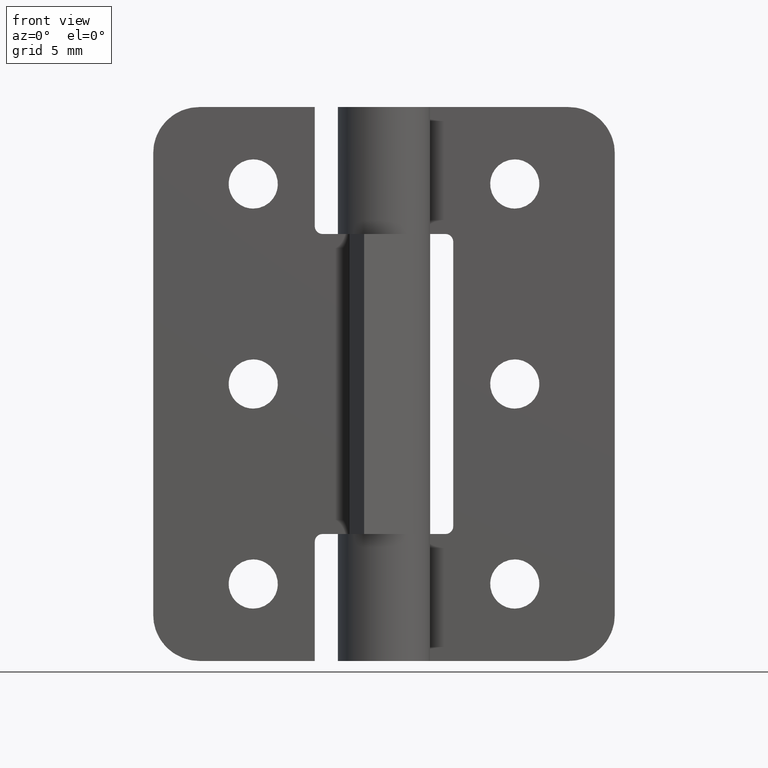
[diagram: clean part render]
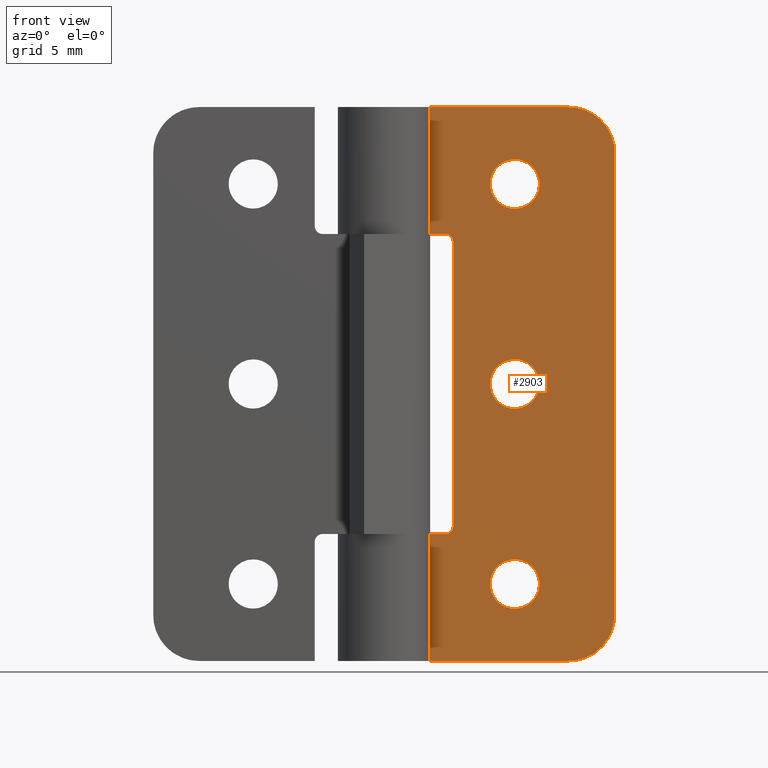
[diagram: same view with one face highlighted and labeled with its STEP entity id]
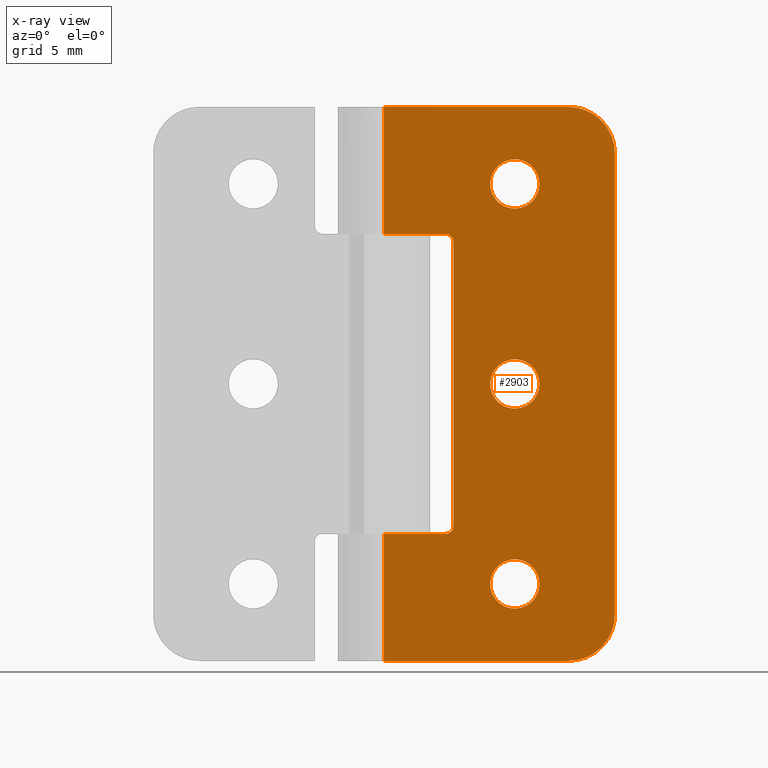
[diagram: x-ray of the same camera — body ghosted, the highlighted face saturated]
A machine part, front view. The second image highlights one B-rep face of the part: STEP entity #2903.
The next image is the same camera in x-ray: the body ghosted, the highlighted face saturated — about 0% of this face is hidden behind the body in this view.
In plain terms, the highlighted face is a freeform B-spline surface patch.
Its self-contained STEP definition (entity closure, byte-faithful):
#1598=CARTESIAN_POINT('',(8.499999999999901,1.499999999999946,32.599992999999998));
#1599=VERTEX_POINT('',#1598);
#1600=CARTESIAN_POINT('',(6.904932266033066,1.499999999999946,31.125527553242971));
#1601=VERTEX_POINT('',#1600);
#1602=CARTESIAN_POINT('',(8.499999999999901,1.499999999999946,32.599992999999998));
#1603=CARTESIAN_POINT('',(7.020975213492634,1.499999999999947,32.599993000000005));
#1604=CARTESIAN_POINT('',(6.904932266033066,1.499999999999946,31.125527553242968));
#1612=(BOUNDED_CURVE()B_SPLINE_CURVE(2,(#1602,#1603,#1604),.UNSPECIFIED.,.F.,.U.)B_SPLINE_CURVE_WITH_KNOTS((3,3),(0.0,0.236331300615913),.UNSPECIFIED.)CURVE()GEOMETRIC_REPRESENTATION_ITEM()RATIONAL_B_SPLINE_CURVE((1.0,0.723120658624943,0.969723356136642))REPRESENTATION_ITEM(''));
#1613=EDGE_CURVE('',#1599,#1601,#1612,.T.);
#1654=CARTESIAN_POINT('',(10.095067733966729,1.499999999999946,30.874458446757028));
#1655=VERTEX_POINT('',#1654);
#1661=CARTESIAN_POINT('',(10.095067733966733,1.499999999999946,30.874458446757032));
#1662=CARTESIAN_POINT('',(10.099999999999900,1.499999999999945,30.937128828708946));
#1663=CARTESIAN_POINT('',(10.099999999999900,1.499999999999946,30.999993000000000));
#1664=CARTESIAN_POINT('',(10.099999999999900,1.499999999999946,32.599992999999998));
#1665=CARTESIAN_POINT('',(8.499999999999901,1.499999999999946,32.599992999999998));
#1673=(BOUNDED_CURVE()B_SPLINE_CURVE(2,(#1661,#1662,#1663,#1664,#1665),.UNSPECIFIED.,.F.,.U.)B_SPLINE_CURVE_WITH_KNOTS((3,2,3),(0.736331300615913,0.750000000000000,1.0),.UNSPECIFIED.)CURVE()GEOMETRIC_REPRESENTATION_ITEM()RATIONAL_B_SPLINE_CURVE((0.969723356136643,0.983986122561605,1.0,0.707106781186548,1.0))REPRESENTATION_ITEM(''));
#1674=EDGE_CURVE('',#1655,#1599,#1673,.T.);
#1697=CARTESIAN_POINT('',(8.499999999999901,1.499999999999946,29.399992999999998));
#1698=VERTEX_POINT('',#1697);
#1699=CARTESIAN_POINT('',(6.904932266033066,1.499999999999946,31.125527553242975));
#1700=CARTESIAN_POINT('',(6.899999999999901,1.499999999999946,31.062857171291050));
#1701=CARTESIAN_POINT('',(6.899999999999900,1.499999999999946,30.999993000000000));
#1702=CARTESIAN_POINT('',(6.899999999999901,1.499999999999946,29.399992999999998));
#1703=CARTESIAN_POINT('',(8.499999999999901,1.499999999999946,29.399992999999998));
#1711=(BOUNDED_CURVE()B_SPLINE_CURVE(2,(#1699,#1700,#1701,#1702,#1703),.UNSPECIFIED.,.F.,.U.)B_SPLINE_CURVE_WITH_KNOTS((3,2,3),(0.236331300615913,0.250000000000000,0.500000000000000),.UNSPECIFIED.)CURVE()GEOMETRIC_REPRESENTATION_ITEM()RATIONAL_B_SPLINE_CURVE((0.969723356136642,0.983986122561605,1.0,0.707106781186548,1.0))REPRESENTATION_ITEM(''));
#1712=EDGE_CURVE('',#1601,#1698,#1711,.T.);
#1714=CARTESIAN_POINT('',(8.499999999999901,1.499999999999946,29.399992999999998));
#1715=CARTESIAN_POINT('',(9.979024786507171,1.499999999999947,29.399993000000002));
#1716=CARTESIAN_POINT('',(10.095067733966733,1.499999999999946,30.874458446757032));
#1724=(BOUNDED_CURVE()B_SPLINE_CURVE(2,(#1714,#1715,#1716),.UNSPECIFIED.,.F.,.U.)B_SPLINE_CURVE_WITH_KNOTS((3,3),(0.500000000000000,0.736331300615913),.UNSPECIFIED.)CURVE()GEOMETRIC_REPRESENTATION_ITEM()RATIONAL_B_SPLINE_CURVE((1.0,0.723120658624942,0.969723356136643))REPRESENTATION_ITEM(''));
#1725=EDGE_CURVE('',#1698,#1655,#1724,.T.);
#1780=CARTESIAN_POINT('',(8.499999999999901,1.499999999999946,19.600000000000001));
#1781=VERTEX_POINT('',#1780);
#1782=CARTESIAN_POINT('',(6.904932266033066,1.499999999999946,18.125534553242961));
#1783=VERTEX_POINT('',#1782);
#1784=CARTESIAN_POINT('',(8.499999999999901,1.499999999999946,19.600000000000001));
#1785=CARTESIAN_POINT('',(7.020975213492632,1.499999999999947,19.599999999999998));
#1786=CARTESIAN_POINT('',(6.904932266033066,1.499999999999946,18.125534553242968));
#1794=(BOUNDED_CURVE()B_SPLINE_CURVE(2,(#1784,#1785,#1786),.UNSPECIFIED.,.F.,.U.)B_SPLINE_CURVE_WITH_KNOTS((3,3),(0.0,0.236331300615913),.UNSPECIFIED.)CURVE()GEOMETRIC_REPRESENTATION_ITEM()RATIONAL_B_SPLINE_CURVE((1.0,0.723120658624942,0.969723356136643))REPRESENTATION_ITEM(''));
#1795=EDGE_CURVE('',#1781,#1783,#1794,.T.);
#1836=CARTESIAN_POINT('',(10.095067733966729,1.499999999999946,17.874465446757039));
#1837=VERTEX_POINT('',#1836);
#1843=CARTESIAN_POINT('',(10.095067733966733,1.499999999999946,17.874465446757039));
#1844=CARTESIAN_POINT('',(10.099999999999900,1.499999999999945,17.937135828708946));
#1845=CARTESIAN_POINT('',(10.099999999999900,1.499999999999946,18.0));
#1846=CARTESIAN_POINT('',(10.099999999999900,1.499999999999946,19.599999999999998));
#1847=CARTESIAN_POINT('',(8.499999999999901,1.499999999999946,19.600000000000001));
#1855=(BOUNDED_CURVE()B_SPLINE_CURVE(2,(#1843,#1844,#1845,#1846,#1847),.UNSPECIFIED.,.F.,.U.)B_SPLINE_CURVE_WITH_KNOTS((3,2,3),(0.736331300615913,0.750000000000000,1.0),.UNSPECIFIED.)CURVE()GEOMETRIC_REPRESENTATION_ITEM()RATIONAL_B_SPLINE_CURVE((0.969723356136643,0.983986122561605,1.0,0.707106781186548,1.0))REPRESENTATION_ITEM(''));
#1856=EDGE_CURVE('',#1837,#1781,#1855,.T.);
#1879=CARTESIAN_POINT('',(8.499999999999901,1.499999999999946,16.399999999999999));
#1880=VERTEX_POINT('',#1879);
#1881=CARTESIAN_POINT('',(6.904932266033066,1.499999999999946,18.125534553242968));
#1882=CARTESIAN_POINT('',(6.899999999999900,1.499999999999947,18.062864171291050));
#1883=CARTESIAN_POINT('',(6.899999999999900,1.499999999999946,18.0));
#1884=CARTESIAN_POINT('',(6.899999999999901,1.499999999999946,16.399999999999999));
#1885=CARTESIAN_POINT('',(8.499999999999901,1.499999999999946,16.399999999999999));
#1893=(BOUNDED_CURVE()B_SPLINE_CURVE(2,(#1881,#1882,#1883,#1884,#1885),.UNSPECIFIED.,.F.,.U.)B_SPLINE_CURVE_WITH_KNOTS((3,2,3),(0.236331300615913,0.250000000000000,0.500000000000000),.UNSPECIFIED.)CURVE()GEOMETRIC_REPRESENTATION_ITEM()RATIONAL_B_SPLINE_CURVE((0.969723356136643,0.983986122561605,1.0,0.707106781186548,1.0))REPRESENTATION_ITEM(''));
#1894=EDGE_CURVE('',#1783,#1880,#1893,.T.);
#1896=CARTESIAN_POINT('',(8.499999999999901,1.499999999999946,16.399999999999999));
#1897=CARTESIAN_POINT('',(9.979024786507171,1.499999999999947,16.400000000000006));
#1898=CARTESIAN_POINT('',(10.095067733966733,1.499999999999946,17.874465446757039));
#1906=(BOUNDED_CURVE()B_SPLINE_CURVE(2,(#1896,#1897,#1898),.UNSPECIFIED.,.F.,.U.)B_SPLINE_CURVE_WITH_KNOTS((3,3),(0.500000000000000,0.736331300615913),.UNSPECIFIED.)CURVE()GEOMETRIC_REPRESENTATION_ITEM()RATIONAL_B_SPLINE_CURVE((1.0,0.723120658624942,0.969723356136643))REPRESENTATION_ITEM(''));
#1907=EDGE_CURVE('',#1880,#1837,#1906,.T.);
#1962=CARTESIAN_POINT('',(8.499999999999901,1.499999999999946,6.599999999999900));
#1963=VERTEX_POINT('',#1962);
#1964=CARTESIAN_POINT('',(6.904932266033067,1.499999999999946,5.125534553242865));
#1965=VERTEX_POINT('',#1964);
#1966=CARTESIAN_POINT('',(8.499999999999901,1.499999999999946,6.599999999999900));
#1967=CARTESIAN_POINT('',(7.020975213492634,1.499999999999947,6.599999999999900));
#1968=CARTESIAN_POINT('',(6.904932266033067,1.499999999999946,5.125534553242865));
#1976=(BOUNDED_CURVE()B_SPLINE_CURVE(2,(#1966,#1967,#1968),.UNSPECIFIED.,.F.,.U.)B_SPLINE_CURVE_WITH_KNOTS((3,3),(0.0,0.236331300615913),.UNSPECIFIED.)CURVE()GEOMETRIC_REPRESENTATION_ITEM()RATIONAL_B_SPLINE_CURVE((1.0,0.723120658624943,0.969723356136642))REPRESENTATION_ITEM(''));
#1977=EDGE_CURVE('',#1963,#1965,#1976,.T.);
#2018=CARTESIAN_POINT('',(10.095067733966729,1.499999999999946,4.874465446756936));
#2019=VERTEX_POINT('',#2018);
#2025=CARTESIAN_POINT('',(10.095067733966733,1.499999999999946,4.874465446756936));
#2026=CARTESIAN_POINT('',(10.099999999999898,1.499999999999946,4.937135828708852));
#2027=CARTESIAN_POINT('',(10.099999999999900,1.499999999999946,4.999999999999901));
#2028=CARTESIAN_POINT('',(10.099999999999900,1.499999999999946,6.599999999999900));
#2029=CARTESIAN_POINT('',(8.499999999999901,1.499999999999946,6.599999999999900));
#2037=(BOUNDED_CURVE()B_SPLINE_CURVE(2,(#2025,#2026,#2027,#2028,#2029),.UNSPECIFIED.,.F.,.U.)B_SPLINE_CURVE_WITH_KNOTS((3,2,3),(0.736331300615913,0.750000000000000,1.0),.UNSPECIFIED.)CURVE()GEOMETRIC_REPRESENTATION_ITEM()RATIONAL_B_SPLINE_CURVE((0.969723356136642,0.983986122561605,1.0,0.707106781186548,1.0))REPRESENTATION_ITEM(''));
#2038=EDGE_CURVE('',#2019,#1963,#2037,.T.);
#2061=CARTESIAN_POINT('',(8.499999999999901,1.499999999999946,3.399999999999900));
#2062=VERTEX_POINT('',#2061);
#2063=CARTESIAN_POINT('',(6.904932266033067,1.499999999999946,5.125534553242865));
#2064=CARTESIAN_POINT('',(6.899999999999901,1.499999999999946,5.062864171290948));
#2065=CARTESIAN_POINT('',(6.899999999999900,1.499999999999946,4.999999999999901));
#2066=CARTESIAN_POINT('',(6.899999999999901,1.499999999999946,3.399999999999901));
#2067=CARTESIAN_POINT('',(8.499999999999901,1.499999999999946,3.399999999999900));
#2075=(BOUNDED_CURVE()B_SPLINE_CURVE(2,(#2063,#2064,#2065,#2066,#2067),.UNSPECIFIED.,.F.,.U.)B_SPLINE_CURVE_WITH_KNOTS((3,2,3),(0.236331300615913,0.250000000000000,0.500000000000000),.UNSPECIFIED.)CURVE()GEOMETRIC_REPRESENTATION_ITEM()RATIONAL_B_SPLINE_CURVE((0.969723356136642,0.983986122561605,1.0,0.707106781186548,1.0))REPRESENTATION_ITEM(''));
#2076=EDGE_CURVE('',#1965,#2062,#2075,.T.);
#2078=CARTESIAN_POINT('',(8.499999999999901,1.499999999999946,3.399999999999900));
#2079=CARTESIAN_POINT('',(9.979024786507171,1.499999999999947,3.399999999999901));
#2080=CARTESIAN_POINT('',(10.095067733966733,1.499999999999946,4.874465446756936));
#2088=(BOUNDED_CURVE()B_SPLINE_CURVE(2,(#2078,#2079,#2080),.UNSPECIFIED.,.F.,.U.)B_SPLINE_CURVE_WITH_KNOTS((3,3),(0.500000000000000,0.736331300615913),.UNSPECIFIED.)CURVE()GEOMETRIC_REPRESENTATION_ITEM()RATIONAL_B_SPLINE_CURVE((1.0,0.723120658624942,0.969723356136643))REPRESENTATION_ITEM(''));
#2089=EDGE_CURVE('',#2062,#2019,#2088,.T.);
#2140=CARTESIAN_POINT('',(3.999999999999800,1.500000000000000,27.749993000000050));
#2141=VERTEX_POINT('',#2140);
#2142=CARTESIAN_POINT('',(4.499999999999799,1.500000000000000,27.249992999999950));
#2143=VERTEX_POINT('',#2142);
#2144=CARTESIAN_POINT('',(3.999999999999800,1.500000000000000,27.749993000000050));
#2145=CARTESIAN_POINT('',(4.207106781186362,1.499999999999946,27.749992999999996));
#2146=CARTESIAN_POINT('',(4.353553390593092,1.499999999999946,27.603546390593259));
#2147=CARTESIAN_POINT('',(4.499999999999821,1.499999999999946,27.457099781186507));
#2148=CARTESIAN_POINT('',(4.499999999999799,1.499999999999946,27.249992999999950));
#2156=(BOUNDED_CURVE()B_SPLINE_CURVE(2,(#2144,#2145,#2146,#2147,#2148),.UNSPECIFIED.,.F.,.U.)B_SPLINE_CURVE_WITH_KNOTS((3,2,3),(0.0,0.500000000000000,1.0),.UNSPECIFIED.)CURVE()GEOMETRIC_REPRESENTATION_ITEM()RATIONAL_B_SPLINE_CURVE((1.0,0.923879532511277,1.0,0.923879532511277,1.0))REPRESENTATION_ITEM(''));
#2157=EDGE_CURVE('',#2141,#2143,#2156,.T.);
#2203=CARTESIAN_POINT('',(4.499999999999799,1.500000000000000,8.750000000000000));
#2204=VERTEX_POINT('',#2203);
#2205=CARTESIAN_POINT('',(3.999999999999800,1.500000000000000,8.249999999999870));
#2206=VERTEX_POINT('',#2205);
#2207=CARTESIAN_POINT('',(4.499999999999799,1.500000000000000,8.750000000000000));
#2208=CARTESIAN_POINT('',(4.499999999999842,1.499999999999946,8.542893218813424));
#2209=CARTESIAN_POINT('',(4.353553390593109,1.499999999999946,8.396446609406663));
#2210=CARTESIAN_POINT('',(4.207106781186377,1.499999999999946,8.249999999999901));
#2211=CARTESIAN_POINT('',(3.999999999999800,1.500000000000000,8.249999999999870));
#2219=(BOUNDED_CURVE()B_SPLINE_CURVE(2,(#2207,#2208,#2209,#2210,#2211),.UNSPECIFIED.,.F.,.U.)B_SPLINE_CURVE_WITH_KNOTS((3,2,3),(0.0,0.500000000000000,1.0),.UNSPECIFIED.)CURVE()GEOMETRIC_REPRESENTATION_ITEM()RATIONAL_B_SPLINE_CURVE((1.0,0.923879532511267,1.0,0.923879532511267,1.0))REPRESENTATION_ITEM(''));
#2220=EDGE_CURVE('',#2204,#2206,#2219,.T.);
#2283=CARTESIAN_POINT('',(12.000006999999901,1.500000000000000,35.999993000000003));
#2284=VERTEX_POINT('',#2283);
#2290=CARTESIAN_POINT('',(15.000006999999901,1.500000000000000,32.999993000000003));
#2291=VERTEX_POINT('',#2290);
#2292=CARTESIAN_POINT('',(15.000006999999901,1.500000000000000,32.999993000000003));
#2293=CARTESIAN_POINT('',(15.000006999999897,1.500000000000000,35.999993000000011));
#2294=CARTESIAN_POINT('',(12.000006999999901,1.500000000000000,35.999993000000003));
#2302=(BOUNDED_CURVE()B_SPLINE_CURVE(2,(#2292,#2293,#2294),.UNSPECIFIED.,.F.,.U.)CURVE()GEOMETRIC_REPRESENTATION_ITEM()QUASI_UNIFORM_CURVE()RATIONAL_B_SPLINE_CURVE((1.0,0.707106781186548,1.0))REPRESENTATION_ITEM(''));
#2303=EDGE_CURVE('',#2291,#2284,#2302,.T.);
#2344=CARTESIAN_POINT('',(15.000006999999901,1.500000000000000,3.0));
#2345=VERTEX_POINT('',#2344);
#2351=CARTESIAN_POINT('',(12.000006999999901,1.500000000000000,0.0));
#2352=VERTEX_POINT('',#2351);
#2353=CARTESIAN_POINT('',(12.000006999999901,1.500000000000000,0.0));
#2354=CARTESIAN_POINT('',(15.000006999999897,1.500000000000000,0.0));
#2355=CARTESIAN_POINT('',(15.000006999999901,1.500000000000000,3.0));
#2363=(BOUNDED_CURVE()B_SPLINE_CURVE(2,(#2353,#2354,#2355),.UNSPECIFIED.,.F.,.U.)CURVE()GEOMETRIC_REPRESENTATION_ITEM()QUASI_UNIFORM_CURVE()RATIONAL_B_SPLINE_CURVE((1.0,0.707106781186548,1.0))REPRESENTATION_ITEM(''));
#2364=EDGE_CURVE('',#2352,#2345,#2363,.T.);
#2387=CARTESIAN_POINT('',(0.0,1.500000000000000,27.749993000000050));
#2388=VERTEX_POINT('',#2387);
#2389=CARTESIAN_POINT('',(0.0,1.500000000000000,27.749993000000050));
#2390=CARTESIAN_POINT('',(3.999999999999800,1.500000000000000,27.749993000000050));
#2391=QUASI_UNIFORM_CURVE('',1,(#2389,#2390),.UNSPECIFIED.,.F.,.U.);
#2392=EDGE_CURVE('',#2388,#2141,#2391,.T.);
#2455=CARTESIAN_POINT('',(4.499999999999799,1.500000000000000,27.249992999999950));
#2456=CARTESIAN_POINT('',(4.499999999999799,1.500000000000000,8.750000000000000));
#2457=QUASI_UNIFORM_CURVE('',1,(#2455,#2456),.UNSPECIFIED.,.F.,.U.);
#2458=EDGE_CURVE('',#2143,#2204,#2457,.T.);
#2469=CARTESIAN_POINT('',(0.0,1.500000000000000,8.249999999999870));
#2470=VERTEX_POINT('',#2469);
#2471=CARTESIAN_POINT('',(3.999999999999800,1.500000000000000,8.249999999999870));
#2472=CARTESIAN_POINT('',(0.0,1.500000000000000,8.249999999999870));
#2473=QUASI_UNIFORM_CURVE('',1,(#2471,#2472),.UNSPECIFIED.,.F.,.U.);
#2474=EDGE_CURVE('',#2206,#2470,#2473,.T.);
#2547=CARTESIAN_POINT('',(0.0,1.500000000000000,0.0));
#2548=VERTEX_POINT('',#2547);
#2549=CARTESIAN_POINT('',(12.000006999999901,1.500000000000000,0.0));
#2550=CARTESIAN_POINT('',(0.0,1.500000000000000,0.0));
#2551=QUASI_UNIFORM_CURVE('',1,(#2549,#2550),.UNSPECIFIED.,.F.,.U.);
#2552=EDGE_CURVE('',#2352,#2548,#2551,.T.);
#2609=CARTESIAN_POINT('',(0.0,1.500000000000000,35.999993000000003));
#2610=VERTEX_POINT('',#2609);
#2611=CARTESIAN_POINT('',(12.000006999999901,1.500000000000000,35.999993000000003));
#2612=CARTESIAN_POINT('',(0.0,1.500000000000000,35.999993000000003));
#2613=QUASI_UNIFORM_CURVE('',1,(#2611,#2612),.UNSPECIFIED.,.F.,.U.);
#2614=EDGE_CURVE('',#2284,#2610,#2613,.T.);
#2679=CARTESIAN_POINT('',(15.000006999999901,1.500000000000000,32.999993000000003));
#2680=CARTESIAN_POINT('',(15.000006999999901,1.500000000000000,3.0));
#2681=QUASI_UNIFORM_CURVE('',1,(#2679,#2680),.UNSPECIFIED.,.F.,.U.);
#2682=EDGE_CURVE('',#2291,#2345,#2681,.T.);
#2757=CARTESIAN_POINT('',(0.0,1.500000000000000,35.999993000000003));
#2758=CARTESIAN_POINT('',(0.0,1.500000000000000,27.749993000000050));
#2759=QUASI_UNIFORM_CURVE('',1,(#2757,#2758),.UNSPECIFIED.,.F.,.U.);
#2760=EDGE_CURVE('',#2610,#2388,#2759,.T.);
#2792=CARTESIAN_POINT('',(0.0,1.500000000000000,8.249999999999870));
#2793=CARTESIAN_POINT('',(0.0,1.500000000000000,0.0));
#2794=QUASI_UNIFORM_CURVE('',1,(#2792,#2793),.UNSPECIFIED.,.F.,.U.);
#2795=EDGE_CURVE('',#2470,#2548,#2794,.T.);
#2866=CARTESIAN_POINT('',(-0.749250266986511,1.500000000000000,37.798191904690682));
#2867=CARTESIAN_POINT('',(-0.749250266986511,1.500000000000000,-1.798200514015770));
#2868=CARTESIAN_POINT('',(15.749256596433851,1.500000000000000,37.798191904690682));
#2869=CARTESIAN_POINT('',(15.749256596433851,1.500000000000000,-1.798200514015770));
#2870=B_SPLINE_SURFACE_WITH_KNOTS('',1,1,((#2866,#2868),(#2867,#2869)),.UNSPECIFIED.,.F.,.F.,.U.,(2,2),(2,2),(0.0,39.596392418706444),(0.0,16.498506863420360),.UNSPECIFIED.);
#2871=ORIENTED_EDGE('',*,*,#2552,.F.);
#2872=ORIENTED_EDGE('',*,*,#2364,.T.);
#2873=ORIENTED_EDGE('',*,*,#2682,.F.);
#2874=ORIENTED_EDGE('',*,*,#2303,.T.);
#2875=ORIENTED_EDGE('',*,*,#2614,.T.);
#2876=ORIENTED_EDGE('',*,*,#2760,.T.);
#2877=ORIENTED_EDGE('',*,*,#2392,.T.);
#2878=ORIENTED_EDGE('',*,*,#2157,.T.);
#2879=ORIENTED_EDGE('',*,*,#2458,.T.);
#2880=ORIENTED_EDGE('',*,*,#2220,.T.);
#2881=ORIENTED_EDGE('',*,*,#2474,.T.);
#2882=ORIENTED_EDGE('',*,*,#2795,.T.);
#2883=EDGE_LOOP('',(#2871,#2872,#2873,#2874,#2875,#2876,#2877,#2878,#2879,#2880,#2881,#2882));
#2884=FACE_OUTER_BOUND('',#2883,.T.);
#2885=ORIENTED_EDGE('',*,*,#2089,.F.);
#2886=ORIENTED_EDGE('',*,*,#2076,.F.);
#2887=ORIENTED_EDGE('',*,*,#1977,.F.);
#2888=ORIENTED_EDGE('',*,*,#2038,.F.);
#2889=EDGE_LOOP('',(#2885,#2886,#2887,#2888));
#2890=FACE_BOUND('',#2889,.T.);
#2891=ORIENTED_EDGE('',*,*,#1907,.F.);
#2892=ORIENTED_EDGE('',*,*,#1894,.F.);
#2893=ORIENTED_EDGE('',*,*,#1795,.F.);
#2894=ORIENTED_EDGE('',*,*,#1856,.F.);
#2895=EDGE_LOOP('',(#2891,#2892,#2893,#2894));
#2896=FACE_BOUND('',#2895,.T.);
#2897=ORIENTED_EDGE('',*,*,#1725,.F.);
#2898=ORIENTED_EDGE('',*,*,#1712,.F.);
#2899=ORIENTED_EDGE('',*,*,#1613,.F.);
#2900=ORIENTED_EDGE('',*,*,#1674,.F.);
#2901=EDGE_LOOP('',(#2897,#2898,#2899,#2900));
#2902=FACE_BOUND('',#2901,.T.);
#2903=ADVANCED_FACE('',(#2884,#2890,#2896,#2902),#2870,.T.);